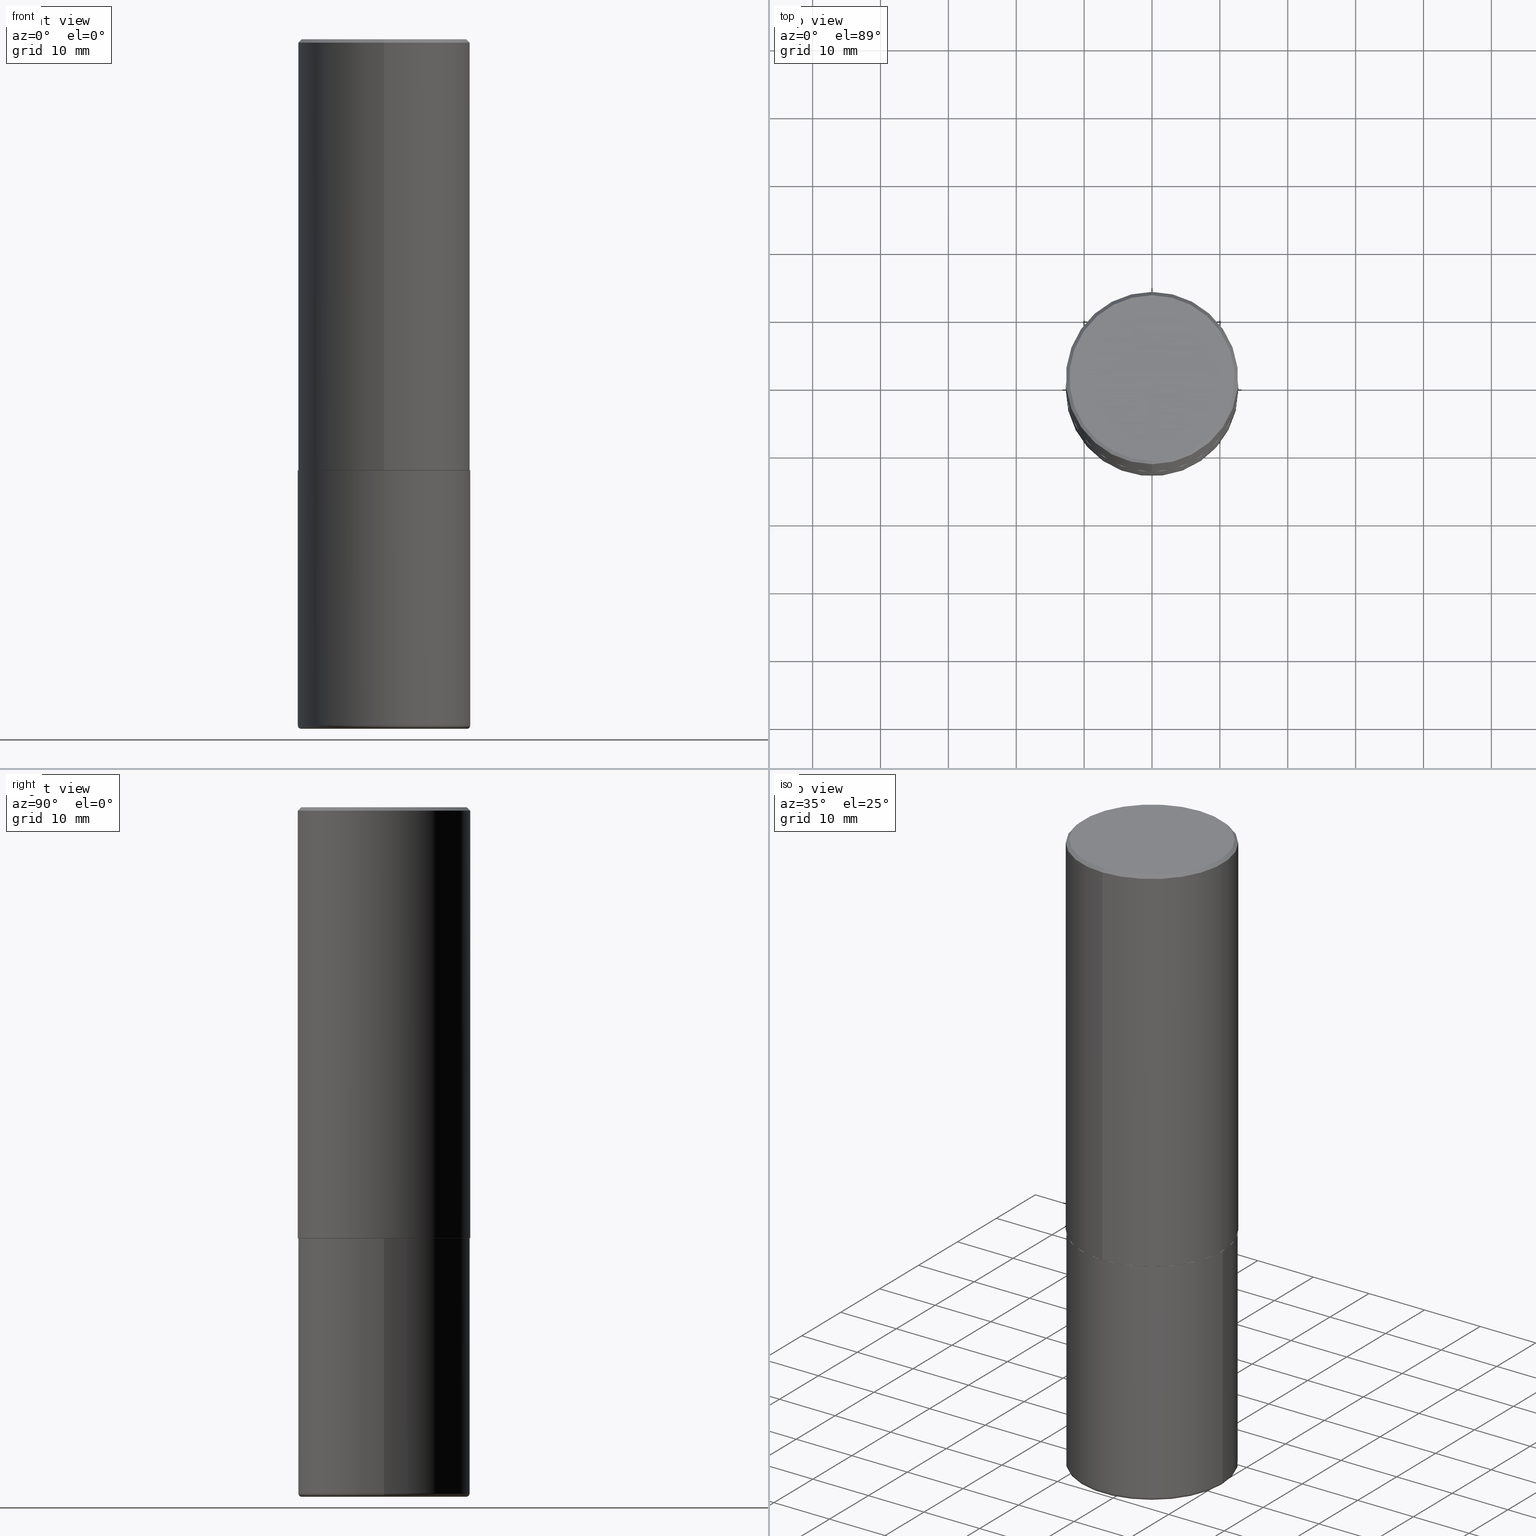
[diagram: canonical four-view strip — front | top / right | iso, engineering-drawing reading convention]
A machine part, canonical four-view strip (front | top / right | iso — engineering-drawing reading convention). The complete STEP part file that produces these views, byte-faithful:
ISO-10303-21;
HEADER;
FILE_DESCRIPTION (( 'STEP AP203' ),
    '1' );
FILE_NAME ('38303.STEP',
    '2024-03-02T21:43:31',
    ( '' ),
    ( '' ),
    'SwSTEP 2.0',
    'SolidWorks 2023',
    '' );
FILE_SCHEMA (( 'CONFIG_CONTROL_DESIGN' ));
ENDSEC;

DATA;
#1 = DIMENSIONAL_EXPONENTS ( 1.000000000000000000, 0.000000000000000000, 0.000000000000000000, 0.000000000000000000, 0.000000000000000000, 0.000000000000000000, 0.000000000000000000 ) ;
#2 = DIRECTION ( 'NONE',  ( -2.444465131706345255E-29, 3.492918657822378473E-15, 1.000000000000000000 ) ) ;
#3 = ORIENTED_EDGE ( 'NONE', *, *, #331, .T. ) ;
#4 = CALENDAR_DATE ( 2024, 2, 3 ) ;
#5 = DIRECTION ( 'NONE',  ( -1.000000000000000000, 6.982962677686265922E-15, -4.876176775795935793E-29 ) ) ;
#6 = ORIENTED_EDGE ( 'NONE', *, *, #190, .T. ) ;
#7 = MECHANICAL_CONTEXT ( 'NONE', #62, 'mechanical' ) ;
#8 = VECTOR ( 'NONE', #220, 39.37007874015748143 ) ;
#9 = CIRCLE ( 'NONE', #79, 0.01999999999999985470 ) ;
#10 = CARTESIAN_POINT ( 'NONE',  ( -3.361644018908049661E-15, -0.4799999999999998157, 1.801077731077684661E-15 ) ) ;
#11 = DESIGN_CONTEXT ( 'detailed design', #115, 'design' ) ;
#12 = DIRECTION ( 'NONE',  ( -2.445468806185136597E-29, 3.491481338843145583E-15, 1.000000000000000000 ) ) ;
#13 = PERSON_AND_ORGANIZATION ( #76, #321 ) ;
#14 = CARTESIAN_POINT ( 'NONE',  ( -0.4799999999999999822, -1.044935113675966299E-14, -4.000000000000000000 ) ) ;
#15 = AXIS2_PLACEMENT_3D ( 'NONE', #119, #336, #183 ) ;
#16 = CARTESIAN_POINT ( 'NONE',  ( 3.545608251442960663E-15, 0.4989999999999912283, -2.500000000000001332 ) ) ;
#17 = ADVANCED_FACE ( 'NONE', ( #177 ), #335, .T. ) ;
#18 = CYLINDRICAL_SURFACE ( 'NONE', #224, 0.5000000000000001110 ) ;
#19 = CALENDAR_DATE ( 2024, 2, 3 ) ;
#20 = ADVANCED_FACE ( 'NONE', ( #397 ), #383, .T. ) ;
#21 = CARTESIAN_POINT ( 'NONE',  ( 3.491481338843133355E-15, 0.4999999999999999445, -0.02000000000000185310 ) ) ;
#22 = AXIS2_PLACEMENT_3D ( 'NONE', #333, #12, #178 ) ;
#23 = DIRECTION ( 'NONE',  ( -2.444465131706345255E-29, 3.492918657822378473E-15, 1.000000000000000000 ) ) ;
#24 = CARTESIAN_POINT ( 'NONE',  ( 3.552713678800501718E-15, 0.5000000000000001110, -1.746459328911189631E-15 ) ) ;
#25 = DIRECTION ( 'NONE',  ( 1.000000000000000000, -6.982962677686267499E-15, 0.000000000000000000 ) ) ;
#26 = EDGE_LOOP ( 'NONE', ( #196, #414, #413, #131 ) ) ;
#27 = DIRECTION ( 'NONE',  ( 6.982962677686265922E-15, 1.000000000000000000, -3.492918657822378868E-15 ) ) ;
#28 = AXIS2_PLACEMENT_3D ( 'NONE', #399, #243, #209 ) ;
#29 = EDGE_CURVE ( 'NONE', #77, #309, #179, .T. ) ;
#30 = EDGE_LOOP ( 'NONE', ( #305, #294, #45, #71 ) ) ;
#31 = DIRECTION ( 'NONE',  ( -1.000000000000000000, 7.105427357600977404E-15, 0.000000000000000000 ) ) ;
#32 = ORIENTED_EDGE ( 'NONE', *, *, #371, .F. ) ;
#33 = DIRECTION ( 'NONE',  ( -2.445468806185136597E-29, 3.491481338843145583E-15, 1.000000000000000000 ) ) ;
#34 = EDGE_LOOP ( 'NONE', ( #6, #98, #126, #373 ) ) ;
#35 = AXIS2_PLACEMENT_3D ( 'NONE', #164, #170, #5 ) ;
#36 = APPROVAL_STATUS ( 'not_yet_approved' ) ;
#37 = DIRECTION ( 'NONE',  ( -2.445468806185136597E-29, 3.491481338843145583E-15, 1.000000000000000000 ) ) ;
#38 = VERTEX_POINT ( 'NONE', #14 ) ;
#39 = CC_DESIGN_PERSON_AND_ORGANIZATION_ASSIGNMENT ( #13, #260, ( #246 ) ) ;
#40 = APPROVAL_ROLE ( '' ) ;
#41 = DIRECTION ( 'NONE',  ( 7.105427357601001859E-15, 1.000000000000000000, -3.491481338843145583E-15 ) ) ;
#42 = ORIENTED_EDGE ( 'NONE', *, *, #103, .F. ) ;
#43 = COORDINATED_UNIVERSAL_TIME_OFFSET ( 5, 0, .BEHIND. ) ;
#44 = EDGE_CURVE ( 'NONE', #165, #171, #118, .T. ) ;
#45 = ORIENTED_EDGE ( 'NONE', *, *, #190, .F. ) ;
#46 = COORDINATED_UNIVERSAL_TIME_OFFSET ( 5, 0, .BEHIND. ) ;
#47 = AXIS2_PLACEMENT_3D ( 'NONE', #248, #409, #376 ) ;
#48 = APPROVAL_PERSON_ORGANIZATION ( #319, #148, #40 ) ;
#49 = CARTESIAN_POINT ( 'NONE',  ( 6.111162829265862436E-29, -8.732296644555945592E-15, -2.499999999999999556 ) ) ;
#50 = APPROVAL_ROLE ( '' ) ;
#51 = DIRECTION ( 'NONE',  ( -2.444465131706345255E-29, 3.492918657822378473E-15, 1.000000000000000000 ) ) ;
#52 = DIRECTION ( 'NONE',  ( -2.445468806185136597E-29, 3.491481338843145583E-15, 1.000000000000000000 ) ) ;
#53 = MANIFOLD_SOLID_BREP ( 'Body-Move/Copy2[2]', #340 ) ;
#54 = AXIS2_PLACEMENT_3D ( 'NONE', #270, #146, #87 ) ;
#55 = DIRECTION ( 'NONE',  ( 1.000000000000000000, -6.982962677686269077E-15, 4.883557194083114022E-29 ) ) ;
#56 = CC_DESIGN_DATE_AND_TIME_ASSIGNMENT ( #269, #176, ( #300 ) ) ;
#57 = DIRECTION ( 'NONE',  ( -2.445468806185136597E-29, 3.491481338843145583E-15, 1.000000000000000000 ) ) ;
#58 = CARTESIAN_POINT ( 'NONE',  ( 6.108718364134157248E-29, -8.728803725898125516E-15, -2.499000000000000110 ) ) ;
#59 = VERTEX_POINT ( 'NONE', #210 ) ;
#60 = VECTOR ( 'NONE', #329, 39.37007874015748143 ) ;
#61 = AXIS2_PLACEMENT_3D ( 'NONE', #195, #314, #385 ) ;
#62 = APPLICATION_CONTEXT ( 'configuration controlled 3d designs of mechanical parts and assemblies' ) ;
#63 = DIRECTION ( 'NONE',  ( -6.982962677686265922E-15, -1.000000000000000000, 3.284787166730577015E-15 ) ) ;
#64 = DIRECTION ( 'NONE',  ( -6.982962677686265922E-15, -1.000000000000000000, 3.492918657822378473E-15 ) ) ;
#65 = LINE ( 'NONE', #24, #90 ) ;
#66 = EDGE_CURVE ( 'NONE', #171, #263, #193, .T. ) ;
#67 = CARTESIAN_POINT ( 'NONE',  ( 0.000000000000000000, 0.000000000000000000, 0.000000000000000000 ) ) ;
#68 = AXIS2_PLACEMENT_3D ( 'NONE', #215, #162, #189 ) ;
#69 = LOCAL_TIME ( 16, 43, 31.00000000000000000, #84 ) ;
#70 = CARTESIAN_POINT ( 'NONE',  ( -0.4799999999999999822, -1.048549059694723984E-14, -3.979999999999999982 ) ) ;
#71 = ORIENTED_EDGE ( 'NONE', *, *, #117, .F. ) ;
#72 = EDGE_CURVE ( 'NONE', #326, #203, #217, .T. ) ;
#73 = ORIENTED_EDGE ( 'NONE', *, *, #219, .T. ) ;
#74 = PERSON_AND_ORGANIZATION ( #76, #321 ) ;
#75 = CIRCLE ( 'NONE', #281, 0.5000000000000000000 ) ;
#76 = PERSON ( 'UNSPECIFIED', 'UNSPECIFIED', 'UNSPECIFIED', ('UNSPECIFIED'), ('UNSPECIFIED'), ('UNSPECIFIED') ) ;
#77 = VERTEX_POINT ( 'NONE', #89 ) ;
#78 = CIRCLE ( 'NONE', #277, 0.4799999999999998157 ) ;
#79 = AXIS2_PLACEMENT_3D ( 'NONE', #70, #41, #31 ) ;
#80 = APPROVAL_STATUS ( 'not_yet_approved' ) ;
#81 = ORIENTED_EDGE ( 'NONE', *, *, #365, .F. ) ;
#82 = CALENDAR_DATE ( 2024, 2, 3 ) ;
#83 = EDGE_LOOP ( 'NONE', ( #348, #290 ) ) ;
#84 = COORDINATED_UNIVERSAL_TIME_OFFSET ( 5, 0, .BEHIND. ) ;
#85 = CIRCLE ( 'NONE', #130, 0.4799999999999998157 ) ;
#86 = LOCAL_TIME ( 16, 43, 31.00000000000000000, #43 ) ;
#87 = DIRECTION ( 'NONE',  ( 1.000000000000000000, -6.982962677686287221E-15, 0.000000000000000000 ) ) ;
#88 = DIRECTION ( 'NONE',  ( -4.937700262167077130E-15, -0.7071067811869072850, 0.7071067811861877495 ) ) ;
#89 = CARTESIAN_POINT ( 'NONE',  ( 0.4999999999999998335, -1.738757706743885397E-14, -3.979999999999999982 ) ) ;
#90 = VECTOR ( 'NONE', #221, 39.37007874015748143 ) ;
#91 = PRODUCT_DEFINITION_SHAPE ( 'NONE', 'NONE',  #300 ) ;
#92 = PLANE ( 'NONE',  #257 ) ;
#93 = EDGE_CURVE ( 'NONE', #204, #38, #245, .T. ) ;
#94 = FACE_OUTER_BOUND ( 'NONE', #30, .T. ) ;
#95 = FACE_OUTER_BOUND ( 'NONE', #102, .T. ) ;
#96 = CIRCLE ( 'NONE', #54, 0.01999999999999985470 ) ;
#97 = FACE_OUTER_BOUND ( 'NONE', #286, .T. ) ;
#98 = ORIENTED_EDGE ( 'NONE', *, *, #282, .T. ) ;
#99 = CARTESIAN_POINT ( 'NONE',  ( 9.732965848616844417E-29, -1.389609572859572061E-14, -3.979999999999999982 ) ) ;
#100 = EDGE_CURVE ( 'NONE', #77, #166, #402, .T. ) ;
#101 = DIRECTION ( 'NONE',  ( -2.444465131706345255E-29, 3.492918657822378473E-15, 1.000000000000000000 ) ) ;
#102 = EDGE_LOOP ( 'NONE', ( #388, #135, #32, #411 ) ) ;
#103 = EDGE_CURVE ( 'NONE', #309, #382, #240, .T. ) ;
#104 = ORIENTED_EDGE ( 'NONE', *, *, #223, .F. ) ;
#105 = APPROVAL_ROLE ( '' ) ;
#106 = ORIENTED_EDGE ( 'NONE', *, *, #66, .T. ) ;
#107 =( CONVERSION_BASED_UNIT ( 'INCH', #327 ) LENGTH_UNIT ( ) NAMED_UNIT ( #1 ) );
#108 = PLANE ( 'NONE',  #35 ) ;
#109 = ORIENTED_EDGE ( 'NONE', *, *, #200, .T. ) ;
#110 = CALENDAR_DATE ( 2024, 2, 3 ) ;
#111 = ORIENTED_EDGE ( 'NONE', *, *, #182, .F. ) ;
#112 = EDGE_CURVE ( 'NONE', #204, #77, #96, .T. ) ;
#113 = PERSON_AND_ORGANIZATION ( #76, #321 ) ;
#114 = CARTESIAN_POINT ( 'NONE',  ( 9.732965848616844417E-29, -1.389609572859572061E-14, -3.979999999999999982 ) ) ;
#115 = APPLICATION_CONTEXT ( 'configuration controlled 3d designs of mechanical parts and assemblies' ) ;
#116 = CARTESIAN_POINT ( 'NONE',  ( 0.5000000000000000000, -3.491481338843133355E-15, 2.438088387897967896E-29 ) ) ;
#117 = EDGE_CURVE ( 'NONE', #203, #59, #181, .T. ) ;
#118 = LINE ( 'NONE', #301, #60 ) ;
#119 = CARTESIAN_POINT ( 'NONE',  ( 6.111162829265862436E-29, -8.732296644555945592E-15, -2.499999999999999556 ) ) ;
#120 = CARTESIAN_POINT ( 'NONE',  ( -3.484498376165385415E-15, -0.4990000000000087144, -2.499999999999997780 ) ) ;
#121 = CARTESIAN_POINT ( 'NONE',  ( 0.4799999999999999822, -1.731774744066199067E-14, -4.000000000000000000 ) ) ;
#122 = CARTESIAN_POINT ( 'NONE',  ( 6.111162829265862436E-29, -8.732296644555945592E-15, -2.499999999999999556 ) ) ;
#123 = CARTESIAN_POINT ( 'NONE',  ( -3.430248998885764992E-15, -0.5000000000000001110, -0.01999999999999835937 ) ) ;
#124 = CONICAL_SURFACE ( 'NONE', #404, 0.5000000000000000000, 0.7853981633974473908 ) ;
#125 = DIRECTION ( 'NONE',  ( 4.937700262164543309E-15, 0.7071067811865444641, -0.7071067811865505703 ) ) ;
#126 = ORIENTED_EDGE ( 'NONE', *, *, #66, .F. ) ;
#127 = CARTESIAN_POINT ( 'NONE',  ( 0.000000000000000000, 0.000000000000000000, 0.000000000000000000 ) ) ;
#128 = CARTESIAN_POINT ( 'NONE',  ( 3.421651712066270057E-15, 0.4799999999999998157, -1.552124180431797316E-15 ) ) ;
#129 = ORIENTED_EDGE ( 'NONE', *, *, #182, .T. ) ;
#130 = AXIS2_PLACEMENT_3D ( 'NONE', #276, #342, #343 ) ;
#131 = ORIENTED_EDGE ( 'NONE', *, *, #112, .F. ) ;
#132 = ORIENTED_EDGE ( 'NONE', *, *, #72, .T. ) ;
#133 = APPROVAL_DATE_TIME ( #360, #244 ) ;
#134 = DIRECTION ( 'NONE',  ( 1.000000000000000000, -6.982962677686269077E-15, 0.000000000000000000 ) ) ;
#135 = ORIENTED_EDGE ( 'NONE', *, *, #103, .T. ) ;
#136 = ADVANCED_BREP_SHAPE_REPRESENTATION ( '38303', ( #191, #53, #225 ), #233 ) ;
#137 = EDGE_CURVE ( 'NONE', #326, #185, #274, .T. ) ;
#138 = CONICAL_SURFACE ( 'NONE', #68, 0.4989999999999999991, 0.7853981633979605359 ) ;
#139 = ORIENTED_EDGE ( 'NONE', *, *, #44, .T. ) ;
#140 = AXIS2_PLACEMENT_3D ( 'NONE', #192, #278, #27 ) ;
#141 = PERSON_AND_ORGANIZATION ( #76, #321 ) ;
#142 = CARTESIAN_POINT ( 'NONE',  ( 0.5000000000000000000, -1.222018468595099830E-14, -2.500000000000000000 ) ) ;
#143 =( NAMED_UNIT ( * ) PLANE_ANGLE_UNIT ( ) SI_UNIT ( $, .RADIAN. ) );
#144 = CARTESIAN_POINT ( 'NONE',  ( -0.5000000000000000000, 3.552713678800500929E-15, -2.459467545127452891E-29 ) ) ;
#145 = EDGE_CURVE ( 'NONE', #38, #204, #355, .T. ) ;
#146 = DIRECTION ( 'NONE',  ( -6.982962677686266711E-15, -1.000000000000000000, 3.491481338843145583E-15 ) ) ;
#147 = CIRCLE ( 'NONE', #15, 0.4989999999999999991 ) ;
#148 = APPROVAL ( #36, 'UNSPECIFIED' ) ;
#149 = FACE_OUTER_BOUND ( 'NONE', #199, .T. ) ;
#150 = COORDINATED_UNIVERSAL_TIME_OFFSET ( 5, 0, .BEHIND. ) ;
#151 = APPROVAL_DATE_TIME ( #374, #148 ) ;
#152 = DIRECTION ( 'NONE',  ( 1.000000000000000000, -6.982962677686269077E-15, 0.000000000000000000 ) ) ;
#153 = AXIS2_PLACEMENT_3D ( 'NONE', #364, #296, #241 ) ;
#154 = TOROIDAL_SURFACE ( 'NONE', #410, 0.4799999999999999822, 0.01999999999999985470 ) ;
#155 = CARTESIAN_POINT ( 'NONE',  ( 4.888930263412717169E-31, -6.985837315644793974E-17, -0.02000000000000010797 ) ) ;
#156 = DIRECTION ( 'NONE',  ( -2.445468806185136597E-29, 3.491481338843145583E-15, 1.000000000000000000 ) ) ;
#157 = ADVANCED_FACE ( 'NONE', ( #208 ), #18, .T. ) ;
#158 = PLANE ( 'NONE',  #47 ) ;
#159 = ADVANCED_FACE ( 'NONE', ( #149 ), #92, .T. ) ;
#160 = AXIS2_PLACEMENT_3D ( 'NONE', #249, #156, #152 ) ;
#161 = LOCAL_TIME ( 16, 43, 31.00000000000000000, #46 ) ;
#162 = DIRECTION ( 'NONE',  ( -2.444465131706345255E-29, 3.492918657822378473E-15, 1.000000000000000000 ) ) ;
#163 = EDGE_CURVE ( 'NONE', #203, #326, #147, .T. ) ;
#164 = CARTESIAN_POINT ( 'NONE',  ( 4.206032757375876713E-29, -1.146055134077212698E-14, -2.500000000000000000 ) ) ;
#165 = VERTEX_POINT ( 'NONE', #10 ) ;
#166 = VERTEX_POINT ( 'NONE', #142 ) ;
#167 = APPROVAL_STATUS ( 'not_yet_approved' ) ;
#168 = ORIENTED_EDGE ( 'NONE', *, *, #93, .F. ) ;
#169 =( NAMED_UNIT ( * ) SI_UNIT ( $, .STERADIAN. ) SOLID_ANGLE_UNIT ( ) );
#170 = DIRECTION ( 'NONE',  ( 2.438088387897960049E-29, -3.491481338843145188E-15, -1.000000000000000000 ) ) ;
#171 = VERTEX_POINT ( 'NONE', #123 ) ;
#172 =( LENGTH_UNIT ( ) NAMED_UNIT ( * ) SI_UNIT ( $, .METRE. ) );
#173 = ORIENTED_EDGE ( 'NONE', *, *, #100, .T. ) ;
#174 = SECURITY_CLASSIFICATION_LEVEL ( 'unclassified' ) ;
#175 = DIRECTION ( 'NONE',  ( 1.000000000000000000, -6.982962677686266711E-15, 4.876176775795935793E-29 ) ) ;
#176 = DATE_TIME_ROLE ( 'creation_date' ) ;
#177 = FACE_OUTER_BOUND ( 'NONE', #354, .T. ) ;
#178 = DIRECTION ( 'NONE',  ( 1.000000000000000000, -6.982962677686268288E-15, 0.000000000000000000 ) ) ;
#179 = CIRCLE ( 'NONE', #271, 0.4999999999999999445 ) ;
#180 = CONICAL_SURFACE ( 'NONE', #61, 0.5000000000000000000, 0.7853981633974473908 ) ;
#181 = LINE ( 'NONE', #120, #403 ) ;
#182 = EDGE_CURVE ( 'NONE', #382, #166, #312, .T. ) ;
#183 = DIRECTION ( 'NONE',  ( -6.982962677686265922E-15, -1.000000000000000000, 3.284787166730577015E-15 ) ) ;
#184 = CARTESIAN_POINT ( 'NONE',  ( -3.042791369841808055E-45, 4.347872509910743958E-31, 1.244767753229437217E-16 ) ) ;
#185 = VERTEX_POINT ( 'NONE', #280 ) ;
#186 = AXIS2_PLACEMENT_3D ( 'NONE', #268, #57, #175 ) ;
#187 = CARTESIAN_POINT ( 'NONE',  ( 3.549160965121762351E-15, 0.4989999999999912283, -2.500000000000001332 ) ) ;
#188 = EDGE_CURVE ( 'NONE', #369, #165, #85, .T. ) ;
#189 = DIRECTION ( 'NONE',  ( -6.982962677686265922E-15, -1.000000000000000000, 3.284787166730577015E-15 ) ) ;
#190 = EDGE_CURVE ( 'NONE', #59, #185, #292, .T. ) ;
#191 = MANIFOLD_SOLID_BREP ( 'Body-Move/Copy2[1]', #400 ) ;
#192 = CARTESIAN_POINT ( 'NONE',  ( 3.351822085289406364E-15, 0.4799999999999998157, -1.614362568093269153E-15 ) ) ;
#193 = CIRCLE ( 'NONE', #153, 0.5000000000000000000 ) ;
#194 = AXIS2_PLACEMENT_3D ( 'NONE', #127, #308, #222 ) ;
#195 = CARTESIAN_POINT ( 'NONE',  ( 4.888930263412717169E-31, -6.985837315644793974E-17, -0.02000000000000010797 ) ) ;
#196 = ORIENTED_EDGE ( 'NONE', *, *, #93, .T. ) ;
#197 = ORIENTED_EDGE ( 'NONE', *, *, #188, .T. ) ;
#198 = CARTESIAN_POINT ( 'NONE',  ( 0.000000000000000000, 0.000000000000000000, 0.000000000000000000 ) ) ;
#199 = EDGE_LOOP ( 'NONE', ( #168, #391 ) ) ;
#200 = EDGE_CURVE ( 'NONE', #309, #77, #265, .T. ) ;
#201 = COORDINATED_UNIVERSAL_TIME_OFFSET ( 5, 0, .BEHIND. ) ;
#202 = CARTESIAN_POINT ( 'NONE',  ( 6.113672015462842613E-29, -8.728703347107864943E-15, -2.500000000000000000 ) ) ;
#203 = VERTEX_POINT ( 'NONE', #405 ) ;
#204 = VERTEX_POINT ( 'NONE', #121 ) ;
#205 = AXIS2_PLACEMENT_3D ( 'NONE', #114, #52, #55 ) ;
#206 = DIRECTION ( 'NONE',  ( -2.444465131706345255E-29, 3.492918657822378473E-15, 1.000000000000000000 ) ) ;
#207 = APPLICATION_PROTOCOL_DEFINITION ( 'international standard', 'config_control_design', 1994, #62 ) ;
#208 = FACE_OUTER_BOUND ( 'NONE', #34, .T. ) ;
#209 = DIRECTION ( 'NONE',  ( 1.000000000000000000, -6.982962677686268288E-15, 0.000000000000000000 ) ) ;
#210 = CARTESIAN_POINT ( 'NONE',  ( -3.491481338843073796E-15, -0.5000000000000089928, -2.498999999999998778 ) ) ;
#211 = ADVANCED_FACE ( 'NONE', ( #252 ), #158, .F. ) ;
#212 = SHAPE_DEFINITION_REPRESENTATION ( #91, #136 ) ;
#213 = CC_DESIGN_APPROVAL ( #244, ( #246 ) ) ;
#214 = DIRECTION ( 'NONE',  ( 2.438088387897960049E-29, -3.491481338843145188E-15, -1.000000000000000000 ) ) ;
#215 = CARTESIAN_POINT ( 'NONE',  ( 6.111162829265862436E-29, -8.732296644555945592E-15, -2.499999999999999556 ) ) ;
#216 = EDGE_CURVE ( 'NONE', #369, #263, #302, .T. ) ;
#217 = CIRCLE ( 'NONE', #377, 0.4989999999999999991 ) ;
#218 = LOCAL_TIME ( 16, 43, 31.00000000000000000, #150 ) ;
#219 = EDGE_CURVE ( 'NONE', #59, #171, #247, .T. ) ;
#220 = DIRECTION ( 'NONE',  ( -2.444465131706345255E-29, 3.492918657822378868E-15, 1.000000000000000000 ) ) ;
#221 = DIRECTION ( 'NONE',  ( -2.444465131706345255E-29, 3.492918657822378868E-15, 1.000000000000000000 ) ) ;
#222 = DIRECTION ( 'NONE',  ( 1.000000000000000000, -6.982962677686266711E-15, 4.876176775795935793E-29 ) ) ;
#223 = EDGE_CURVE ( 'NONE', #165, #369, #78, .T. ) ;
#224 = AXIS2_PLACEMENT_3D ( 'NONE', #332, #51, #299 ) ;
#225 = AXIS2_PLACEMENT_3D ( 'NONE', #198, #289, #291 ) ;
#226 = EDGE_LOOP ( 'NONE', ( #197, #318 ) ) ;
#227 = ORIENTED_EDGE ( 'NONE', *, *, #371, .T. ) ;
#228 = PERSON_AND_ORGANIZATION_ROLE ( 'classification_officer' ) ;
#229 = EDGE_CURVE ( 'NONE', #263, #171, #75, .T. ) ;
#230 = DIRECTION ( 'NONE',  ( -6.982962677686266711E-15, -1.000000000000000000, 3.278217592397114284E-15 ) ) ;
#231 = ORIENTED_EDGE ( 'NONE', *, *, #117, .T. ) ;
#232 = CONICAL_SURFACE ( 'NONE', #393, 0.4989999999999999991, 0.7853981633979605359 ) ;
#233 =( GEOMETRIC_REPRESENTATION_CONTEXT ( 3 ) GLOBAL_UNCERTAINTY_ASSIGNED_CONTEXT ( ( #253 ) ) GLOBAL_UNIT_ASSIGNED_CONTEXT ( ( #107, #143, #169 ) ) REPRESENTATION_CONTEXT ( 'NONE', 'WORKASPACE' ) );
#234 = ORIENTED_EDGE ( 'NONE', *, *, #145, .T. ) ;
#235 = PERSON_AND_ORGANIZATION_ROLE ( 'design_owner' ) ;
#236 = ORIENTED_EDGE ( 'NONE', *, *, #282, .F. ) ;
#237 = APPLICATION_PROTOCOL_DEFINITION ( 'international standard', 'config_control_design', 1994, #115 ) ;
#238 = CARTESIAN_POINT ( 'NONE',  ( 9.732965848616844417E-29, -1.389609572859572061E-14, -3.979999999999999982 ) ) ;
#239 = AXIS2_PLACEMENT_3D ( 'NONE', #99, #338, #25 ) ;
#240 = LINE ( 'NONE', #144, #415 ) ;
#241 = DIRECTION ( 'NONE',  ( -6.982962677686265922E-15, -1.000000000000000000, 3.491643216902136408E-15 ) ) ;
#242 = CARTESIAN_POINT ( 'NONE',  ( 9.781875224740546387E-29, -1.396592535537258233E-14, -4.000000000000000000 ) ) ;
#243 = DIRECTION ( 'NONE',  ( -2.445468806185136597E-29, 3.491481338843145583E-15, 1.000000000000000000 ) ) ;
#244 = APPROVAL ( #80, 'UNSPECIFIED' ) ;
#245 = CIRCLE ( 'NONE', #22, 0.4799999999999999822 ) ;
#246 = PRODUCT_DEFINITION_FORMATION_WITH_SPECIFIED_SOURCE ( 'ANY', '', #350, .NOT_KNOWN. ) ;
#247 = LINE ( 'NONE', #380, #8 ) ;
#248 = CARTESIAN_POINT ( 'NONE',  ( 6.111162829265862436E-29, -8.732296644555945592E-15, -2.499999999999999556 ) ) ;
#249 = CARTESIAN_POINT ( 'NONE',  ( 6.113672015462842613E-29, -8.728703347107864943E-15, -2.500000000000000000 ) ) ;
#250 = VECTOR ( 'NONE', #125, 39.37007874015748143 ) ;
#251 = APPROVAL_PERSON_ORGANIZATION ( #113, #244, #50 ) ;
#252 = FACE_OUTER_BOUND ( 'NONE', #83, .T. ) ;
#253 = UNCERTAINTY_MEASURE_WITH_UNIT (LENGTH_MEASURE( 1.000000000000000082E-05 ), #107, 'distance_accuracy_value', 'NONE');
#254 = DIRECTION ( 'NONE',  ( -2.444465131706345255E-29, 3.492918657822378473E-15, 1.000000000000000000 ) ) ;
#255 = ADVANCED_FACE ( 'NONE', ( #94 ), #232, .T. ) ;
#256 = ORIENTED_EDGE ( 'NONE', *, *, #44, .F. ) ;
#257 = AXIS2_PLACEMENT_3D ( 'NONE', #242, #214, #401 ) ;
#258 = CARTESIAN_POINT ( 'NONE',  ( 6.108718364134157248E-29, -8.728803725898125516E-15, -2.499000000000000110 ) ) ;
#259 = EDGE_LOOP ( 'NONE', ( #81, #234, #322, #267 ) ) ;
#260 = PERSON_AND_ORGANIZATION_ROLE ( 'creator' ) ;
#261 = ADVANCED_FACE ( 'NONE', ( #408 ), #138, .T. ) ;
#262 = ORIENTED_EDGE ( 'NONE', *, *, #216, .T. ) ;
#263 = VERTEX_POINT ( 'NONE', #307 ) ;
#264 = PERSON_AND_ORGANIZATION ( #76, #321 ) ;
#265 = CIRCLE ( 'NONE', #239, 0.4999999999999999445 ) ;
#266 = DIRECTION ( 'NONE',  ( 2.444465131706345255E-29, -3.492918657822378473E-15, -1.000000000000000000 ) ) ;
#267 = ORIENTED_EDGE ( 'NONE', *, *, #200, .F. ) ;
#268 = CARTESIAN_POINT ( 'NONE',  ( 0.000000000000000000, 0.000000000000000000, 0.000000000000000000 ) ) ;
#269 = DATE_AND_TIME ( #110, #161 ) ;
#270 = CARTESIAN_POINT ( 'NONE',  ( 0.4799999999999999822, -1.724791781388513052E-14, -3.979999999999999982 ) ) ;
#271 = AXIS2_PLACEMENT_3D ( 'NONE', #238, #370, #298 ) ;
#272 = DIRECTION ( 'NONE',  ( -2.445468806185136877E-29, 3.491481338843145188E-15, 1.000000000000000000 ) ) ;
#273 = AXIS2_PLACEMENT_3D ( 'NONE', #67, #23, #406 ) ;
#274 = LINE ( 'NONE', #16, #320 ) ;
#275 = DIRECTION ( 'NONE',  ( -6.982962677686265922E-15, -1.000000000000000000, 3.284787166730577015E-15 ) ) ;
#276 = CARTESIAN_POINT ( 'NONE',  ( -3.042791369841808055E-45, 4.347872509910743958E-31, 1.244767753229437217E-16 ) ) ;
#277 = AXIS2_PLACEMENT_3D ( 'NONE', #184, #372, #64 ) ;
#278 = DIRECTION ( 'NONE',  ( 2.444465131706344694E-29, -3.492918657822378868E-15, -1.000000000000000000 ) ) ;
#279 = FACE_OUTER_BOUND ( 'NONE', #226, .T. ) ;
#280 = CARTESIAN_POINT ( 'NONE',  ( 3.552713678800533273E-15, 0.4999999999999916178, -2.499000000000001886 ) ) ;
#281 = AXIS2_PLACEMENT_3D ( 'NONE', #155, #339, #311 ) ;
#282 = EDGE_CURVE ( 'NONE', #185, #263, #65, .T. ) ;
#283 = CARTESIAN_POINT ( 'NONE',  ( -0.4999999999999998335, -1.034338204979522126E-14, -3.979999999999999982 ) ) ;
#284 = CC_DESIGN_PERSON_AND_ORGANIZATION_ASSIGNMENT ( #387, #389, ( #246 ) ) ;
#285 = FACE_OUTER_BOUND ( 'NONE', #362, .T. ) ;
#286 = EDGE_LOOP ( 'NONE', ( #236, #3, #73, #417 ) ) ;
#287 = EDGE_LOOP ( 'NONE', ( #351, #132, #231, #324 ) ) ;
#288 = ORIENTED_EDGE ( 'NONE', *, *, #216, .F. ) ;
#289 = DIRECTION ( 'NONE',  ( 0.000000000000000000, 0.000000000000000000, 1.000000000000000000 ) ) ;
#290 = ORIENTED_EDGE ( 'NONE', *, *, #72, .F. ) ;
#291 = DIRECTION ( 'NONE',  ( 1.000000000000000000, 0.000000000000000000, 0.000000000000000000 ) ) ;
#292 = CIRCLE ( 'NONE', #334, 0.5000000000000002220 ) ;
#293 = ADVANCED_FACE ( 'NONE', ( #279 ), #304, .F. ) ;
#294 = ORIENTED_EDGE ( 'NONE', *, *, #137, .T. ) ;
#295 = PERSON_AND_ORGANIZATION ( #76, #321 ) ;
#296 = DIRECTION ( 'NONE',  ( -2.444465131706345255E-29, 3.492918657822378473E-15, 1.000000000000000000 ) ) ;
#297 = CALENDAR_DATE ( 2024, 2, 3 ) ;
#298 = DIRECTION ( 'NONE',  ( 1.000000000000000000, -6.982962677686267499E-15, 0.000000000000000000 ) ) ;
#299 = DIRECTION ( 'NONE',  ( -6.982962677686265922E-15, -1.000000000000000000, 3.492918657822378473E-15 ) ) ;
#300 = PRODUCT_DEFINITION ( 'UNKNOWN', '', #246, #11 ) ;
#301 = CARTESIAN_POINT ( 'NONE',  ( -3.430248998885764992E-15, -0.5000000000000001110, -0.01999999999999835937 ) ) ;
#302 = LINE ( 'NONE', #21, #250 ) ;
#303 = APPROVAL ( #167, 'UNSPECIFIED' ) ;
#304 = PLANE ( 'NONE',  #140 ) ;
#305 = ORIENTED_EDGE ( 'NONE', *, *, #163, .T. ) ;
#306 = CC_DESIGN_APPROVAL ( #303, ( #300 ) ) ;
#307 = CARTESIAN_POINT ( 'NONE',  ( 3.491481338843133355E-15, 0.4999999999999999445, -0.02000000000000185310 ) ) ;
#308 = DIRECTION ( 'NONE',  ( -2.445468806185136597E-29, 3.491481338843145583E-15, 1.000000000000000000 ) ) ;
#309 = VERTEX_POINT ( 'NONE', #283 ) ;
#310 = ADVANCED_FACE ( 'NONE', ( #95 ), #412, .T. ) ;
#311 = DIRECTION ( 'NONE',  ( -6.982962677686265922E-15, -1.000000000000000000, 3.491643216902136408E-15 ) ) ;
#312 = CIRCLE ( 'NONE', #160, 0.5000000000000000000 ) ;
#313 = ADVANCED_FACE ( 'NONE', ( #97 ), #344, .T. ) ;
#314 = DIRECTION ( 'NONE',  ( 2.444465131706345255E-29, -3.492918657822378473E-15, -1.000000000000000000 ) ) ;
#315 = FACE_OUTER_BOUND ( 'NONE', #386, .T. ) ;
#316 = ORIENTED_EDGE ( 'NONE', *, *, #188, .F. ) ;
#317 = DIRECTION ( 'NONE',  ( 6.982962677686265922E-15, 1.000000000000000000, -3.491643216902136408E-15 ) ) ;
#318 = ORIENTED_EDGE ( 'NONE', *, *, #223, .T. ) ;
#319 = PERSON_AND_ORGANIZATION ( #76, #321 ) ;
#320 = VECTOR ( 'NONE', #367, 39.37007874015748143 ) ;
#321 = ORGANIZATION ( 'UNSPECIFIED', 'UNSPECIFIED', '' ) ;
#322 = ORIENTED_EDGE ( 'NONE', *, *, #112, .T. ) ;
#323 = DATE_AND_TIME ( #82, #86 ) ;
#324 = ORIENTED_EDGE ( 'NONE', *, *, #331, .F. ) ;
#325 = ADVANCED_FACE ( 'NONE', ( #375 ), #154, .T. ) ;
#326 = VERTEX_POINT ( 'NONE', #187 ) ;
#327 = LENGTH_MEASURE_WITH_UNIT ( LENGTH_MEASURE( 0.02539999999999999897 ), #172 );
#328 = CC_DESIGN_DATE_AND_TIME_ASSIGNMENT ( #323, #352, ( #394 ) ) ;
#329 = DIRECTION ( 'NONE',  ( -4.851104656540959542E-15, -0.7071067811865493491, -0.7071067811865456854 ) ) ;
#330 = PERSON_AND_ORGANIZATION_ROLE ( 'creator' ) ;
#331 = EDGE_CURVE ( 'NONE', #185, #59, #366, .T. ) ;
#332 = CARTESIAN_POINT ( 'NONE',  ( 0.000000000000000000, 0.000000000000000000, 0.000000000000000000 ) ) ;
#333 = CARTESIAN_POINT ( 'NONE',  ( 9.781875224740546387E-29, -1.396592535537258233E-14, -4.000000000000000000 ) ) ;
#334 = AXIS2_PLACEMENT_3D ( 'NONE', #58, #254, #381 ) ;
#335 = CYLINDRICAL_SURFACE ( 'NONE', #186, 0.5000000000000000000 ) ;
#336 = DIRECTION ( 'NONE',  ( -2.444465131706345255E-29, 3.492918657822378473E-15, 1.000000000000000000 ) ) ;
#337 = CC_DESIGN_PERSON_AND_ORGANIZATION_ASSIGNMENT ( #141, #330, ( #300 ) ) ;
#338 = DIRECTION ( 'NONE',  ( -2.445468806185136597E-29, 3.491481338843145583E-15, 1.000000000000000000 ) ) ;
#339 = DIRECTION ( 'NONE',  ( -2.444465131706345255E-29, 3.492918657822378473E-15, 1.000000000000000000 ) ) ;
#340 = CLOSED_SHELL ( 'NONE', ( #255, #157, #418, #359, #313, #261, #211, #293 ) ) ;
#341 = LOCAL_TIME ( 16, 43, 31.00000000000000000, #201 ) ;
#342 = DIRECTION ( 'NONE',  ( -2.444465131706345255E-29, 3.492918657822378473E-15, 1.000000000000000000 ) ) ;
#343 = DIRECTION ( 'NONE',  ( -6.982962677686265922E-15, -1.000000000000000000, 3.492918657822378473E-15 ) ) ;
#344 = CYLINDRICAL_SURFACE ( 'NONE', #273, 0.5000000000000001110 ) ;
#345 = VECTOR ( 'NONE', #368, 39.37007874015748143 ) ;
#346 = AXIS2_PLACEMENT_3D ( 'NONE', #258, #2, #230 ) ;
#347 = CARTESIAN_POINT ( 'NONE',  ( 9.732965848616844417E-29, -1.389609572859572061E-14, -3.979999999999999982 ) ) ;
#348 = ORIENTED_EDGE ( 'NONE', *, *, #163, .F. ) ;
#349 = CC_DESIGN_PERSON_AND_ORGANIZATION_ASSIGNMENT ( #295, #228, ( #394 ) ) ;
#350 = PRODUCT ( '38303', '38303', '', ( #7 ) ) ;
#351 = ORIENTED_EDGE ( 'NONE', *, *, #137, .F. ) ;
#352 = DATE_TIME_ROLE ( 'classification_date' ) ;
#353 = CARTESIAN_POINT ( 'NONE',  ( 4.888930263412717169E-31, -6.985837315644793974E-17, -0.02000000000000010797 ) ) ;
#354 = EDGE_LOOP ( 'NONE', ( #42, #109, #173, #111 ) ) ;
#355 = CIRCLE ( 'NONE', #28, 0.4799999999999999822 ) ;
#356 = CIRCLE ( 'NONE', #416, 0.5000000000000000000 ) ;
#357 = CC_DESIGN_APPROVAL ( #148, ( #394 ) ) ;
#358 = EDGE_LOOP ( 'NONE', ( #227, #129 ) ) ;
#359 = ADVANCED_FACE ( 'NONE', ( #315 ), #124, .T. ) ;
#360 = DATE_AND_TIME ( #297, #69 ) ;
#361 = DIRECTION ( 'NONE',  ( 1.000000000000000000, -6.982962677686269077E-15, 4.883557194083114022E-29 ) ) ;
#362 = EDGE_LOOP ( 'NONE', ( #104, #139, #106, #288 ) ) ;
#363 = CC_DESIGN_PERSON_AND_ORGANIZATION_ASSIGNMENT ( #264, #235, ( #350 ) ) ;
#364 = CARTESIAN_POINT ( 'NONE',  ( 4.888930263412717169E-31, -6.985837315644793974E-17, -0.02000000000000010797 ) ) ;
#365 = EDGE_CURVE ( 'NONE', #38, #309, #9, .T. ) ;
#366 = CIRCLE ( 'NONE', #346, 0.5000000000000002220 ) ;
#367 = DIRECTION ( 'NONE',  ( 5.024295867790635654E-15, 0.7071067811869121700, 0.7071067811861828645 ) ) ;
#368 = DIRECTION ( 'NONE',  ( -2.445468806185136877E-29, 3.491481338843145188E-15, 1.000000000000000000 ) ) ;
#369 = VERTEX_POINT ( 'NONE', #128 ) ;
#370 = DIRECTION ( 'NONE',  ( -2.445468806185136597E-29, 3.491481338843145583E-15, 1.000000000000000000 ) ) ;
#371 = EDGE_CURVE ( 'NONE', #166, #382, #356, .T. ) ;
#372 = DIRECTION ( 'NONE',  ( -2.444465131706345255E-29, 3.492918657822378473E-15, 1.000000000000000000 ) ) ;
#373 = ORIENTED_EDGE ( 'NONE', *, *, #219, .F. ) ;
#374 = DATE_AND_TIME ( #19, #218 ) ;
#375 = FACE_OUTER_BOUND ( 'NONE', #26, .T. ) ;
#376 = DIRECTION ( 'NONE',  ( -6.982962677686265922E-15, -1.000000000000000000, 3.492918657822378868E-15 ) ) ;
#377 = AXIS2_PLACEMENT_3D ( 'NONE', #49, #206, #275 ) ;
#378 = CC_DESIGN_SECURITY_CLASSIFICATION ( #394, ( #246 ) ) ;
#379 = PRODUCT_RELATED_PRODUCT_CATEGORY ( 'detail', '', ( #350 ) ) ;
#380 = CARTESIAN_POINT ( 'NONE',  ( -3.491481338843133750E-15, -0.5000000000000001110, 1.746459328911189631E-15 ) ) ;
#381 = DIRECTION ( 'NONE',  ( -6.982962677686266711E-15, -1.000000000000000000, 3.278217592397114284E-15 ) ) ;
#382 = VERTEX_POINT ( 'NONE', #390 ) ;
#383 = TOROIDAL_SURFACE ( 'NONE', #205, 0.4799999999999999822, 0.01999999999999985470 ) ;
#384 = APPROVAL_PERSON_ORGANIZATION ( #74, #303, #105 ) ;
#385 = DIRECTION ( 'NONE',  ( 6.982962677686265922E-15, 1.000000000000000000, -3.491643216902136408E-15 ) ) ;
#386 = EDGE_LOOP ( 'NONE', ( #256, #316, #262, #396 ) ) ;
#387 = PERSON_AND_ORGANIZATION ( #76, #321 ) ;
#388 = ORIENTED_EDGE ( 'NONE', *, *, #29, .T. ) ;
#389 = PERSON_AND_ORGANIZATION_ROLE ( 'design_supplier' ) ;
#390 = CARTESIAN_POINT ( 'NONE',  ( -0.5000000000000000000, -7.759685859051291847E-15, -2.500000000000000000 ) ) ;
#391 = ORIENTED_EDGE ( 'NONE', *, *, #145, .F. ) ;
#392 = APPROVAL_DATE_TIME ( #398, #303 ) ;
#393 = AXIS2_PLACEMENT_3D ( 'NONE', #122, #101, #63 ) ;
#394 = SECURITY_CLASSIFICATION ( '', '', #174 ) ;
#395 = FACE_OUTER_BOUND ( 'NONE', #358, .T. ) ;
#396 = ORIENTED_EDGE ( 'NONE', *, *, #229, .T. ) ;
#397 = FACE_OUTER_BOUND ( 'NONE', #259, .T. ) ;
#398 = DATE_AND_TIME ( #4, #341 ) ;
#399 = CARTESIAN_POINT ( 'NONE',  ( 9.781875224740546387E-29, -1.396592535537258233E-14, -4.000000000000000000 ) ) ;
#400 = CLOSED_SHELL ( 'NONE', ( #310, #325, #407, #17, #20, #159 ) ) ;
#401 = DIRECTION ( 'NONE',  ( -1.000000000000000000, 6.982962677686265922E-15, -4.876176775795935793E-29 ) ) ;
#402 = LINE ( 'NONE', #116, #345 ) ;
#403 = VECTOR ( 'NONE', #88, 39.37007874015748143 ) ;
#404 = AXIS2_PLACEMENT_3D ( 'NONE', #353, #266, #317 ) ;
#405 = CARTESIAN_POINT ( 'NONE',  ( -3.484498376165385415E-15, -0.4990000000000087144, -2.499999999999997780 ) ) ;
#406 = DIRECTION ( 'NONE',  ( -6.982962677686265922E-15, -1.000000000000000000, 3.492918657822378473E-15 ) ) ;
#407 = ADVANCED_FACE ( 'NONE', ( #395 ), #108, .F. ) ;
#408 = FACE_OUTER_BOUND ( 'NONE', #287, .T. ) ;
#409 = DIRECTION ( 'NONE',  ( -2.444465131706344694E-29, 3.492918657822378868E-15, 1.000000000000000000 ) ) ;
#410 = AXIS2_PLACEMENT_3D ( 'NONE', #347, #33, #361 ) ;
#411 = ORIENTED_EDGE ( 'NONE', *, *, #100, .F. ) ;
#412 = CYLINDRICAL_SURFACE ( 'NONE', #194, 0.5000000000000000000 ) ;
#413 = ORIENTED_EDGE ( 'NONE', *, *, #29, .F. ) ;
#414 = ORIENTED_EDGE ( 'NONE', *, *, #365, .T. ) ;
#415 = VECTOR ( 'NONE', #272, 39.37007874015748143 ) ;
#416 = AXIS2_PLACEMENT_3D ( 'NONE', #202, #37, #134 ) ;
#417 = ORIENTED_EDGE ( 'NONE', *, *, #229, .F. ) ;
#418 = ADVANCED_FACE ( 'NONE', ( #285 ), #180, .T. ) ;
ENDSEC;
END-ISO-10303-21;
